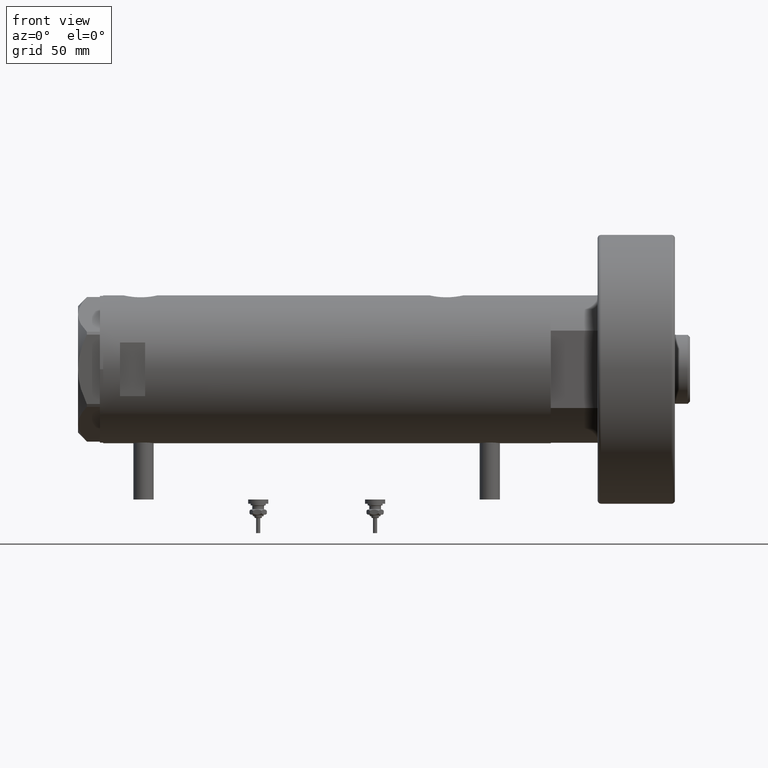
[diagram: clean part render]
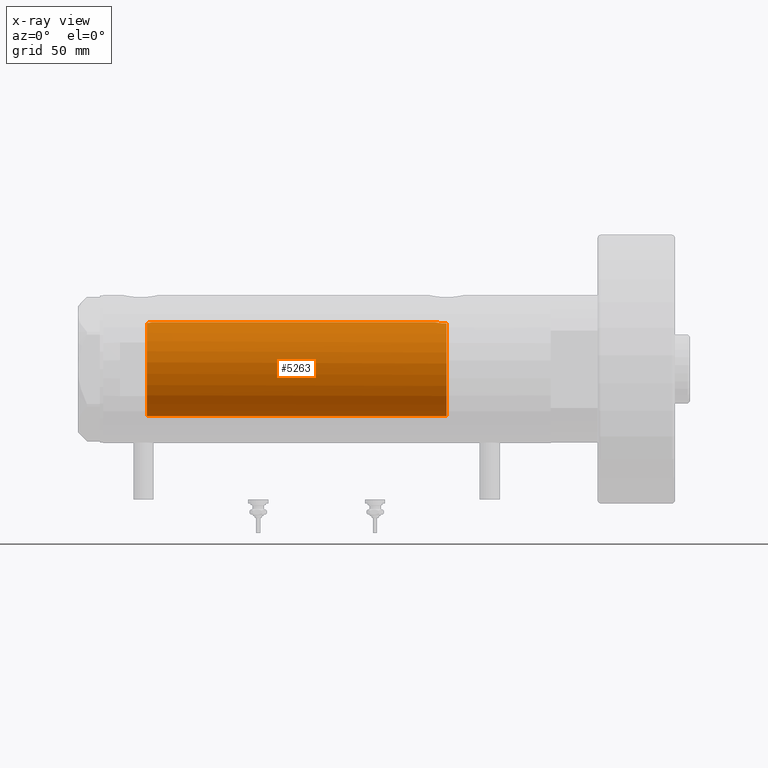
[diagram: x-ray — body ghosted, one internal face saturated and labeled with its STEP entity id]
A machine part, front view, then the same camera in x-ray: the body is ghosted and one INTERNAL B-rep face — a face not visible from any outside direction — is saturated and labeled: STEP entity #5263.
In plain terms, the highlighted cylindrical surface (partial cylindrical patch) has radius 28 mm, axis along (1, 0, -0).
Its self-contained STEP definition (entity closure, byte-faithful):
#44 = CARTESIAN_POINT ( 'NONE',  ( 0.000000000000000000, 0.000000000000000000, -71.19999999999998863 ) ) ;
#60 = EDGE_CURVE ( 'NONE', #6155, #5503, #6214, .T. ) ;
#73 = EDGE_LOOP ( 'NONE', ( #5179, #3595, #5458, #1925, #5406, #2975 ) ) ;
#293 = EDGE_CURVE ( 'NONE', #478, #2353, #1808, .T. ) ;
#327 = CARTESIAN_POINT ( 'NONE',  ( 27.22359243188622813, -6.548490838374237732, -70.32326656774588969 ) ) ;
#413 = B_SPLINE_CURVE_WITH_KNOTS ( 'NONE', 3,
 ( #3618, #5196, #6081, #5679, #5131, #3736, #6145, #3706, #1172, #3096, #5074, #4184, #1745, #3128 ),
 .UNSPECIFIED., .F., .F.,
 ( 4, 2, 2, 2, 2, 2, 4 ),
 ( 2.584956204504771211E-19, 0.001600622945448066737, 0.002400934418172099780, 0.003201245890896132606, 0.004001557363620165432, 0.004801868836344196957, 0.006402491781792286028 ),
 .UNSPECIFIED. ) ;
#448 = DIRECTION ( 'NONE',  ( -1.000000000000000000, 0.000000000000000000, 0.000000000000000000 ) ) ;
#477 = CARTESIAN_POINT ( 'NONE',  ( 27.28993558706078559, -6.267945658363885286, -69.05080727201159618 ) ) ;
#478 = VERTEX_POINT ( 'NONE', #5384 ) ;
#506 = CARTESIAN_POINT ( 'NONE',  ( 27.99747352180818893, -0.4347571716796926333, -64.53072531013187074 ) ) ;
#622 = CARTESIAN_POINT ( 'NONE',  ( -28.00000000000000000, 0.000000000000000000, 107.1999999999999886 ) ) ;
#805 = CARTESIAN_POINT ( 'NONE',  ( 27.94978721344213923, -1.729827962054674151, -64.73650615356601179 ) ) ;
#839 = CARTESIAN_POINT ( 'NONE',  ( 27.92072186409136236, -2.143620579020482975, -64.86381653969046113 ) ) ;
#965 = CARTESIAN_POINT ( 'NONE',  ( 28.00000000000000000, 8.058211040172173087E-16, -64.51999999999999602 ) ) ;
#991 = CARTESIAN_POINT ( 'NONE',  ( 27.84562549742225457, -2.942523713096127036, -65.21055141078905137 ) ) ;
#1172 = CARTESIAN_POINT ( 'NONE',  ( 27.77532582369375191, -3.546840381797769393, 105.3513442352566472 ) ) ;
#1268 = CARTESIAN_POINT ( 'NONE',  ( -28.00000000000000000, 0.000000000000000000, -71.19999999999998863 ) ) ;
#1272 = CARTESIAN_POINT ( 'NONE',  ( 27.21605408577812213, -6.579240077698945477, -71.19999999999998863 ) ) ;
#1287 = DIRECTION ( 'NONE',  ( -0.000000000000000000, -0.000000000000000000, -1.000000000000000000 ) ) ;
#1309 = CARTESIAN_POINT ( 'NONE',  ( 28.00000000000000000, 8.058211040172173087E-16, -64.51999999999999602 ) ) ;
#1315 = CARTESIAN_POINT ( 'NONE',  ( 27.43032278742160912, -5.620674311437150017, -67.67201933177626927 ) ) ;
#1439 = CARTESIAN_POINT ( 'NONE',  ( 27.36461315879793688, -5.931995402771978121, -68.24427370164927709 ) ) ;
#1533 = AXIS2_PLACEMENT_3D ( 'NONE', #44, #3963, #5855 ) ;
#1745 = CARTESIAN_POINT ( 'NONE',  ( 27.52591771332016535, -5.139864392033251406, 106.7568941995207723 ) ) ;
#1749 = DIRECTION ( 'NONE',  ( 1.000000000000000000, 0.000000000000000000, 0.000000000000000000 ) ) ;
#1806 = CARTESIAN_POINT ( 'NONE',  ( 27.21605408577812213, -6.579240077698945477, -71.19999999999998863 ) ) ;
#1808 = LINE ( 'NONE', #5732, #4964 ) ;
#1848 = DIRECTION ( 'NONE',  ( -0.000000000000000000, -0.000000000000000000, -1.000000000000000000 ) ) ;
#1861 = DIRECTION ( 'NONE',  ( -0.000000000000000000, -0.000000000000000000, -1.000000000000000000 ) ) ;
#1925 = ORIENTED_EDGE ( 'NONE', *, *, #2739, .T. ) ;
#2070 = AXIS2_PLACEMENT_3D ( 'NONE', #6292, #1861, #448 ) ;
#2170 = CARTESIAN_POINT ( 'NONE',  ( 0.000000000000000000, 0.000000000000000000, 107.1999999999999886 ) ) ;
#2184 = CIRCLE ( 'NONE', #3921, 28.00000000000000000 ) ;
#2353 = VERTEX_POINT ( 'NONE', #1309 ) ;
#2387 = CARTESIAN_POINT ( 'NONE',  ( 27.46622653369043121, -5.441176343402230664, 107.1999999999999886 ) ) ;
#2739 = EDGE_CURVE ( 'NONE', #4231, #5503, #5445, .T. ) ;
#2764 = CARTESIAN_POINT ( 'NONE',  ( 27.70817449315709879, -4.048115514111796820, -65.89463981057743069 ) ) ;
#2975 = ORIENTED_EDGE ( 'NONE', *, *, #5929, .T. ) ;
#3096 = CARTESIAN_POINT ( 'NONE',  ( 27.71590503262371641, -3.984646725731645578, 105.6568856620623507 ) ) ;
#3128 = CARTESIAN_POINT ( 'NONE',  ( 27.46622653369043121, -5.441176343402230664, 107.1999999999999886 ) ) ;
#3197 = VECTOR ( 'NONE', #1848, 1000.000000000000000 ) ;
#3280 = CARTESIAN_POINT ( 'NONE',  ( 27.97963188585491423, -1.089002775846577009, -64.60708365738665293 ) ) ;
#3340 = EDGE_CURVE ( 'NONE', #478, #4922, #413, .T. ) ;
#3404 = CARTESIAN_POINT ( 'NONE',  ( 27.40754191563009812, -5.730381220489945804, -67.85863096555546292 ) ) ;
#3437 = CARTESIAN_POINT ( 'NONE',  ( 27.86589383012873711, -2.744524676092587434, -65.11575755532261667 ) ) ;
#3595 = ORIENTED_EDGE ( 'NONE', *, *, #293, .T. ) ;
#3618 = CARTESIAN_POINT ( 'NONE',  ( 28.00000000000000000, 0.000000000000000000, 104.3199999999999790 ) ) ;
#3706 = CARTESIAN_POINT ( 'NONE',  ( 27.80347162683809614, -3.320043793664068321, 105.2127974257676470 ) ) ;
#3732 = CARTESIAN_POINT ( 'NONE',  ( 27.80238224209238140, -3.326386449198553752, -65.41852099557870304 ) ) ;
#3736 = CARTESIAN_POINT ( 'NONE',  ( 27.87937907436174001, -2.608343522657389446, 104.8531017779723982 ) ) ;
#3814 = FACE_OUTER_BOUND ( 'NONE', #73, .T. ) ;
#3914 = EDGE_CURVE ( 'NONE', #4231, #2353, #4067, .T. ) ;
#3921 = AXIS2_PLACEMENT_3D ( 'NONE', #2170, #6179, #1749 ) ;
#3963 = DIRECTION ( 'NONE',  ( 0.000000000000000000, 0.000000000000000000, -1.000000000000000000 ) ) ;
#4067 = B_SPLINE_CURVE_WITH_KNOTS ( 'NONE', 3,
 ( #1806, #4924, #327, #4424, #477, #5765, #1439, #3404, #1315, #5250, #5729, #5216, #2764, #4742, #3732, #991, #3437, #839, #805, #3280, #5704, #506, #5373, #965 ),
 .UNSPECIFIED., .F., .F.,
 ( 4, 2, 2, 2, 2, 2, 2, 2, 2, 2, 2, 4 ),
 ( 0.01022506235776658202, 0.01152748911132699637, 0.01282991586488741245, 0.01348112924166763697, 0.01413234261844786323, 0.01543476937200835217, 0.01673719612556883937, 0.01738840950234907257, 0.01803962287912930576, 0.01934204963268975480, 0.01999326300946997412, 0.02064447638625019343 ),
 .UNSPECIFIED. ) ;
#4184 = CARTESIAN_POINT ( 'NONE',  ( 27.59002303441815229, -4.790793940098343029, 106.3581617652145752 ) ) ;
#4231 = VERTEX_POINT ( 'NONE', #1272 ) ;
#4319 = CARTESIAN_POINT ( 'NONE',  ( -28.00000000000000000, 0.000000000000000000, 133.1999999999999886 ) ) ;
#4424 = CARTESIAN_POINT ( 'NONE',  ( 27.26146154097649443, -6.389008671741149392, -69.46702257288441729 ) ) ;
#4742 = CARTESIAN_POINT ( 'NONE',  ( 27.77950496257091828, -3.511644525604262324, -65.53121142391829324 ) ) ;
#4800 = CYLINDRICAL_SURFACE ( 'NONE', #2070, 28.00000000000000000 ) ;
#4922 = VERTEX_POINT ( 'NONE', #2387 ) ;
#4924 = CARTESIAN_POINT ( 'NONE',  ( 27.21445766202533889, -6.585843933871728062, -70.76551644800676399 ) ) ;
#4964 = VECTOR ( 'NONE', #1287, 1000.000000000000000 ) ;
#5074 = CARTESIAN_POINT ( 'NONE',  ( 27.68450581507583763, -4.196237264393388067, 105.8246780296441329 ) ) ;
#5131 = CARTESIAN_POINT ( 'NONE',  ( 27.92172852149585793, -2.107204279616225584, 104.6607593279537269 ) ) ;
#5179 = ORIENTED_EDGE ( 'NONE', *, *, #3340, .F. ) ;
#5196 = CARTESIAN_POINT ( 'NONE',  ( 28.00000000000001421, -0.5413643627070160447, 104.3199999999999648 ) ) ;
#5216 = CARTESIAN_POINT ( 'NONE',  ( 27.65700784474207907, -4.380217411398929173, -66.17047453774084431 ) ) ;
#5250 = CARTESIAN_POINT ( 'NONE',  ( 27.50152613123827905, -5.265397630035334231, -67.13030070339347333 ) ) ;
#5263 = ADVANCED_FACE ( 'NONE', ( #3814 ), #4800, .F. ) ;
#5373 = CARTESIAN_POINT ( 'NONE',  ( 28.00000000000000000, -0.2171842281426346610, -64.52000000000001023 ) ) ;
#5384 = CARTESIAN_POINT ( 'NONE',  ( 28.00000000000000000, 0.000000000000000000, 104.3199999999999790 ) ) ;
#5406 = ORIENTED_EDGE ( 'NONE', *, *, #60, .F. ) ;
#5445 = CIRCLE ( 'NONE', #1533, 28.00000000000000000 ) ;
#5458 = ORIENTED_EDGE ( 'NONE', *, *, #3914, .F. ) ;
#5503 = VERTEX_POINT ( 'NONE', #1268 ) ;
#5679 = CARTESIAN_POINT ( 'NONE',  ( 27.94009016578283777, -1.849003963078880153, 104.5794787532051231 ) ) ;
#5704 = CARTESIAN_POINT ( 'NONE',  ( 27.98730817101647617, -0.8707001454186236167, -64.57418472479976401 ) ) ;
#5729 = CARTESIAN_POINT ( 'NONE',  ( 27.55308463769900484, -4.992385646466225069, -66.79156508565561978 ) ) ;
#5732 = CARTESIAN_POINT ( 'NONE',  ( 28.00000000000000000, 3.429011037612588487E-15, 133.1999999999999886 ) ) ;
#5765 = CARTESIAN_POINT ( 'NONE',  ( 27.34439869716138460, -6.024183900845911488, -68.44423424753804852 ) ) ;
#5855 = DIRECTION ( 'NONE',  ( -1.000000000000000000, 0.000000000000000000, 0.000000000000000000 ) ) ;
#5929 = EDGE_CURVE ( 'NONE', #6155, #4922, #2184, .T. ) ;
#6081 = CARTESIAN_POINT ( 'NONE',  ( 27.98432695902670275, -1.071102777755447599, 104.3858034427758952 ) ) ;
#6145 = CARTESIAN_POINT ( 'NONE',  ( 27.85549665828546750, -2.850794839423820726, 104.9636768369876449 ) ) ;
#6155 = VERTEX_POINT ( 'NONE', #622 ) ;
#6179 = DIRECTION ( 'NONE',  ( 0.000000000000000000, 0.000000000000000000, 1.000000000000000000 ) ) ;
#6214 = LINE ( 'NONE', #4319, #3197 ) ;
#6292 = CARTESIAN_POINT ( 'NONE',  ( 0.000000000000000000, 0.000000000000000000, 133.1999999999999886 ) ) ;